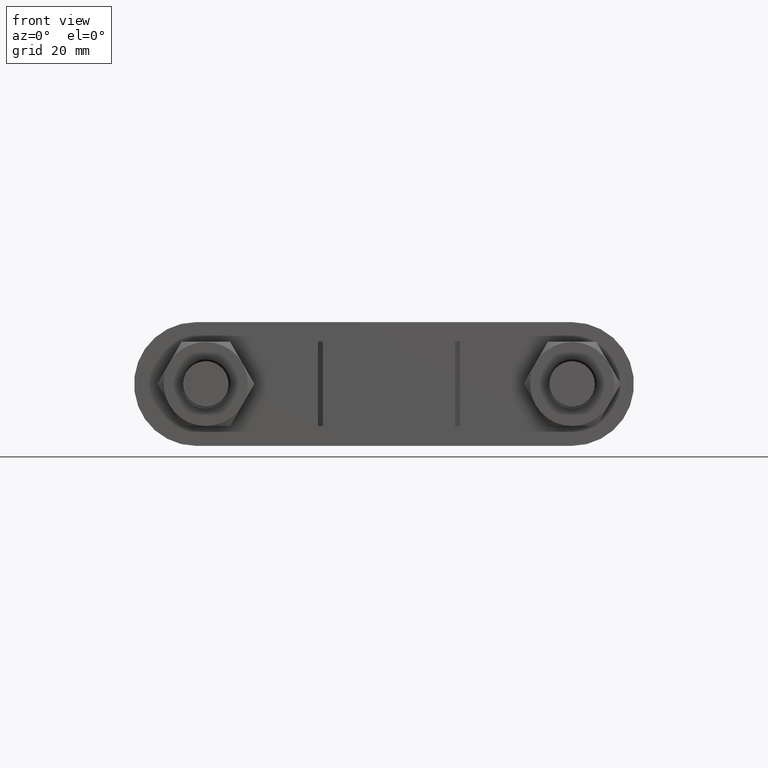
[diagram: clean part render]
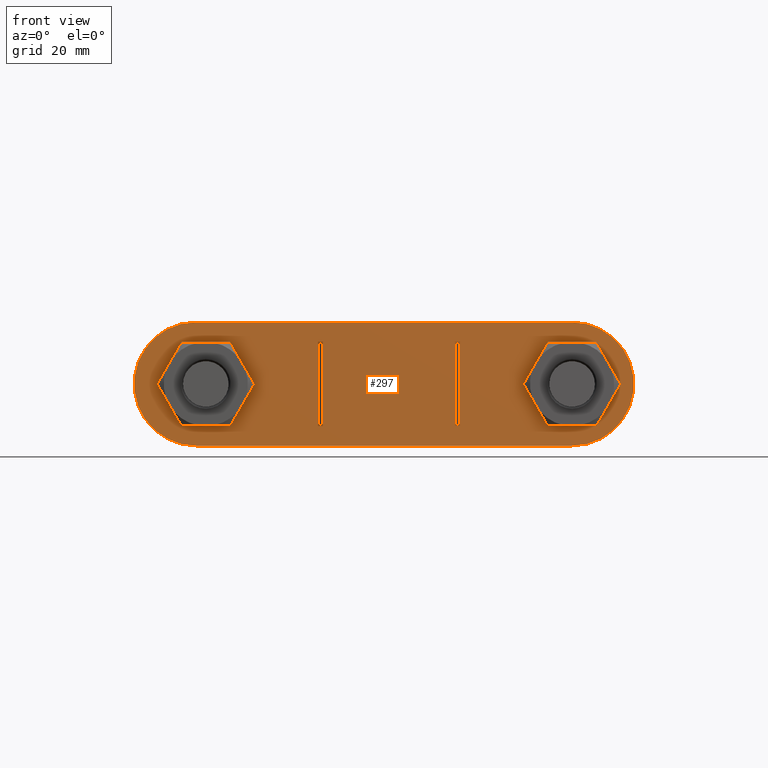
[diagram: same view with one face highlighted and labeled with its STEP entity id]
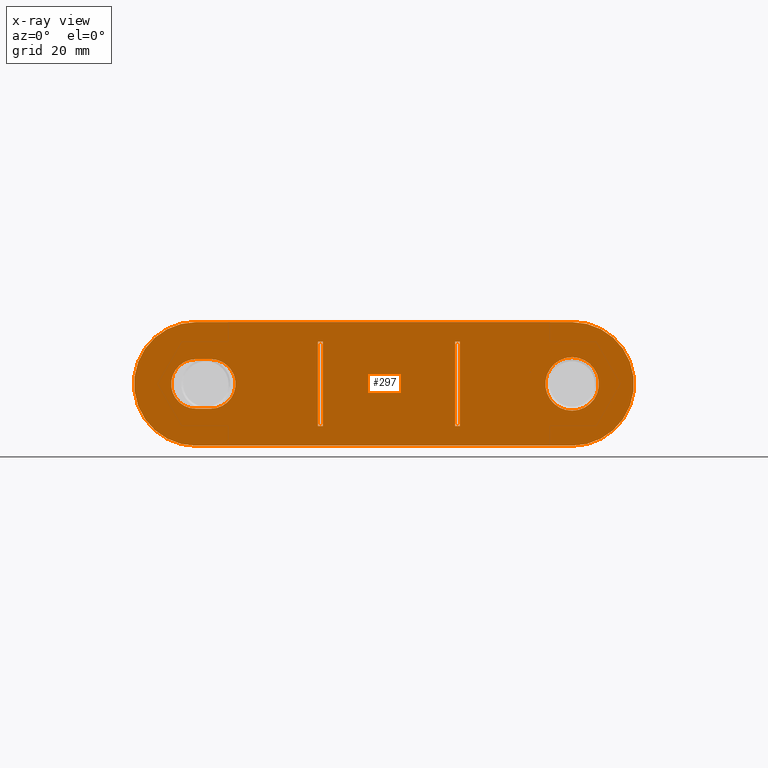
[diagram: x-ray of the same camera — body ghosted, the highlighted face saturated]
A machine part, front view. The second image highlights one B-rep face of the part: STEP entity #297.
The next image is the same camera in x-ray: the body ghosted, the highlighted face saturated — about 0% of this face is hidden behind the body in this view.
In plain terms, the highlighted planar face has unit normal (0, 1, -0).
Its self-contained STEP definition (entity closure, byte-faithful):
#297 = ADVANCED_FACE( '', ( #449, #450, #451, #452, #453 ), #454, .F. );
#449 = FACE_OUTER_BOUND( '', #1527, .T. );
#450 = FACE_BOUND( '', #1528, .T. );
#451 = FACE_BOUND( '', #1529, .T. );
#452 = FACE_BOUND( '', #1530, .T. );
#453 = FACE_BOUND( '', #1531, .T. );
#454 = PLANE( '', #1532 );
#1527 = EDGE_LOOP( '', ( #1902, #1903, #1904, #1905 ) );
#1528 = EDGE_LOOP( '', ( #1906, #1907, #1908, #1909 ) );
#1529 = EDGE_LOOP( '', ( #1910 ) );
#1530 = EDGE_LOOP( '', ( #1911, #1912, #1913, #1914 ) );
#1531 = EDGE_LOOP( '', ( #1915, #1916, #1917, #1918 ) );
#1532 = AXIS2_PLACEMENT_3D( '', #1919, #1920, #1921 );
#1902 = ORIENTED_EDGE( '', *, *, #2565, .F. );
#1903 = ORIENTED_EDGE( '', *, *, #2566, .F. );
#1904 = ORIENTED_EDGE( '', *, *, #2567, .F. );
#1905 = ORIENTED_EDGE( '', *, *, #2568, .F. );
#1906 = ORIENTED_EDGE( '', *, *, #2569, .F. );
#1907 = ORIENTED_EDGE( '', *, *, #2570, .T. );
#1908 = ORIENTED_EDGE( '', *, *, #2571, .T. );
#1909 = ORIENTED_EDGE( '', *, *, #2572, .F. );
#1910 = ORIENTED_EDGE( '', *, *, #2573, .T. );
#1911 = ORIENTED_EDGE( '', *, *, #2574, .F. );
#1912 = ORIENTED_EDGE( '', *, *, #2575, .F. );
#1913 = ORIENTED_EDGE( '', *, *, #2576, .F. );
#1914 = ORIENTED_EDGE( '', *, *, #2577, .F. );
#1915 = ORIENTED_EDGE( '', *, *, #2578, .T. );
#1916 = ORIENTED_EDGE( '', *, *, #2579, .T. );
#1917 = ORIENTED_EDGE( '', *, *, #2580, .F. );
#1918 = ORIENTED_EDGE( '', *, *, #2581, .F. );
#1919 = CARTESIAN_POINT( '', ( -39.0000000000000, 31.3000000000001, 2.78648428436405E-013 ) );
#1920 = DIRECTION( '', ( 5.79542473279380E-048, 1.00000000000000, -1.50836642442293E-016 ) );
#1921 = DIRECTION( '', ( 1.00000000000000, -1.21543267145725E-063, 3.84218624795431E-032 ) );
#2565 = EDGE_CURVE( '', #2829, #2830, #2831, .T. );
#2566 = EDGE_CURVE( '', #2832, #2829, #2833, .T. );
#2567 = EDGE_CURVE( '', #2834, #2832, #2835, .T. );
#2568 = EDGE_CURVE( '', #2830, #2834, #2836, .T. );
#2569 = EDGE_CURVE( '', #2837, #2838, #2839, .T. );
#2570 = EDGE_CURVE( '', #2837, #2840, #2841, .T. );
#2571 = EDGE_CURVE( '', #2840, #2842, #2843, .T. );
#2572 = EDGE_CURVE( '', #2838, #2842, #2844, .T. );
#2573 = EDGE_CURVE( '', #2845, #2845, #2846, .T. );
#2574 = EDGE_CURVE( '', #2847, #2848, #2849, .T. );
#2575 = EDGE_CURVE( '', #2850, #2847, #2851, .T. );
#2576 = EDGE_CURVE( '', #2852, #2850, #2853, .T. );
#2577 = EDGE_CURVE( '', #2848, #2852, #2854, .T. );
#2578 = EDGE_CURVE( '', #2855, #2856, #2857, .T. );
#2579 = EDGE_CURVE( '', #2856, #2858, #2859, .T. );
#2580 = EDGE_CURVE( '', #2860, #2858, #2861, .T. );
#2581 = EDGE_CURVE( '', #2855, #2860, #2862, .T. );
#2829 = VERTEX_POINT( '', #3464 );
#2830 = VERTEX_POINT( '', #3465 );
#2831 = CIRCLE( '', #3466, 12.5000000000000 );
#2832 = VERTEX_POINT( '', #3467 );
#2833 = LINE( '', #3468, #3469 );
#2834 = VERTEX_POINT( '', #3470 );
#2835 = CIRCLE( '', #3471, 12.5000000000000 );
#2836 = LINE( '', #3472, #3473 );
#2837 = VERTEX_POINT( '', #3474 );
#2838 = VERTEX_POINT( '', #3475 );
#2839 = LINE( '', #3476, #3477 );
#2840 = VERTEX_POINT( '', #3478 );
#2841 = LINE( '', #3479, #3480 );
#2842 = VERTEX_POINT( '', #3481 );
#2843 = LINE( '', #3482, #3483 );
#2844 = LINE( '', #3484, #3485 );
#2845 = VERTEX_POINT( '', #3486 );
#2846 = CIRCLE( '', #3487, 5.40000000000000 );
#2847 = VERTEX_POINT( '', #3488 );
#2848 = VERTEX_POINT( '', #3489 );
#2849 = CIRCLE( '', #3490, 5.00000000000000 );
#2850 = VERTEX_POINT( '', #3491 );
#2851 = LINE( '', #3492, #3493 );
#2852 = VERTEX_POINT( '', #3494 );
#2853 = CIRCLE( '', #3495, 5.00000000000000 );
#2854 = LINE( '', #3496, #3497 );
#2855 = VERTEX_POINT( '', #3498 );
#2856 = VERTEX_POINT( '', #3499 );
#2857 = LINE( '', #3500, #3501 );
#2858 = VERTEX_POINT( '', #3502 );
#2859 = LINE( '', #3503, #3504 );
#2860 = VERTEX_POINT( '', #3505 );
#2861 = LINE( '', #3506, #3507 );
#2862 = LINE( '', #3508, #3509 );
#3464 = CARTESIAN_POINT( '', ( -39.0000000000001, 31.3000000000001, -12.4999999999997 ) );
#3465 = CARTESIAN_POINT( '', ( -39.0000000000000, 31.3000000000001, 12.5000000000003 ) );
#3466 = AXIS2_PLACEMENT_3D( '', #4066, #4067, #4068 );
#3467 = CARTESIAN_POINT( '', ( 36.9999999999999, 31.3000000000001, -12.5000000000002 ) );
#3468 = CARTESIAN_POINT( '', ( 36.9999999999999, 31.3000000000001, -12.5000000000002 ) );
#3469 = VECTOR( '', #4069, 1000.00000000000 );
#3470 = CARTESIAN_POINT( '', ( 37.0000000000001, 31.3000000000001, 12.5000000000000 ) );
#3471 = AXIS2_PLACEMENT_3D( '', #4070, #4071, #4072 );
#3472 = CARTESIAN_POINT( '', ( -38.9999999999999, 31.3000000000001, 12.5000000000003 ) );
#3473 = VECTOR( '', #4073, 1000.00000000000 );
#3474 = CARTESIAN_POINT( '', ( -14.3500000000001, 31.3000000000001, -8.49999999999990 ) );
#3475 = CARTESIAN_POINT( '', ( -13.3500000000001, 31.3000000000001, -8.49999999999990 ) );
#3476 = CARTESIAN_POINT( '', ( -14.3500000000001, 31.3000000000001, -8.49999999999990 ) );
#3477 = VECTOR( '', #4074, 1000.00000000000 );
#3478 = CARTESIAN_POINT( '', ( -14.3500000000000, 31.3000000000001, 8.50000000000011 ) );
#3479 = CARTESIAN_POINT( '', ( -14.3500000000000, 31.3000000000001, 1.03284535553662E-013 ) );
#3480 = VECTOR( '', #4075, 1000.00000000000 );
#3481 = CARTESIAN_POINT( '', ( -13.3500000000000, 31.3000000000001, 8.50000000000011 ) );
#3482 = CARTESIAN_POINT( '', ( -39.0000000000000, 31.3000000000001, 8.50000000000011 ) );
#3483 = VECTOR( '', #4076, 1000.00000000000 );
#3484 = CARTESIAN_POINT( '', ( -13.3500000000001, 31.3000000000001, -8.49999999999990 ) );
#3485 = VECTOR( '', #4077, 1000.00000000000 );
#3486 = CARTESIAN_POINT( '', ( 37.0000000000000, 31.3000000000001, 5.39999999999975 ) );
#3487 = AXIS2_PLACEMENT_3D( '', #4078, #4079, #4080 );
#3488 = CARTESIAN_POINT( '', ( -39.0000000000000, 31.3000000000001, 5.00000000000027 ) );
#3489 = CARTESIAN_POINT( '', ( -39.0000000000001, 31.3000000000001, -4.99999999999972 ) );
#3490 = AXIS2_PLACEMENT_3D( '', #4081, #4082, #4083 );
#3491 = CARTESIAN_POINT( '', ( -36.0000000000000, 31.3000000000001, 5.00000000000026 ) );
#3492 = CARTESIAN_POINT( '', ( -36.0000000000000, 31.3000000000001, 5.00000000000026 ) );
#3493 = VECTOR( '', #4084, 1000.00000000000 );
#3494 = CARTESIAN_POINT( '', ( -36.0000000000001, 31.3000000000001, -4.99999999999974 ) );
#3495 = AXIS2_PLACEMENT_3D( '', #4085, #4086, #4087 );
#3496 = CARTESIAN_POINT( '', ( -39.0000000000001, 31.3000000000001, -4.99999999999972 ) );
#3497 = VECTOR( '', #4088, 1000.00000000000 );
#3498 = CARTESIAN_POINT( '', ( 14.3499999999999, 31.3000000000001, -8.50000000000010 ) );
#3499 = CARTESIAN_POINT( '', ( 13.3499999999999, 31.3000000000001, -8.50000000000010 ) );
#3500 = CARTESIAN_POINT( '', ( -39.0000000000000, 31.3000000000001, -8.50000000000010 ) );
#3501 = VECTOR( '', #4089, 1000.00000000000 );
#3502 = CARTESIAN_POINT( '', ( 13.3500000000000, 31.3000000000001, 8.49999999999991 ) );
#3503 = CARTESIAN_POINT( '', ( 13.3500000000000, 31.3000000000001, -8.12398257694737E-014 ) );
#3504 = VECTOR( '', #4090, 1000.00000000000 );
#3505 = CARTESIAN_POINT( '', ( 14.3500000000000, 31.3000000000001, 8.49999999999991 ) );
#3506 = CARTESIAN_POINT( '', ( 14.3500000000000, 31.3000000000001, 8.49999999999991 ) );
#3507 = VECTOR( '', #4091, 1000.00000000000 );
#3508 = CARTESIAN_POINT( '', ( 14.3499999999999, 31.3000000000001, -8.50000000000010 ) );
#3509 = VECTOR( '', #4092, 1000.00000000000 );
#4066 = CARTESIAN_POINT( '', ( -39.0000000000000, 31.3000000000001, 2.78648428436405E-013 ) );
#4067 = DIRECTION( '', ( -3.84218624795431E-032, 1.00000000000000, -1.50836642442293E-016 ) );
#4068 = DIRECTION( '', ( 9.47172037996550E-064, 1.50836642442293E-016, 1.00000000000000 ) );
#4069 = DIRECTION( '', ( -1.00000000000000, 1.01659071191936E-030, 6.99440505514123E-015 ) );
#4070 = CARTESIAN_POINT( '', ( 37.0000000000000, 31.3000000000001, -2.45987461850420E-013 ) );
#4071 = DIRECTION( '', ( -3.84218624795431E-032, 1.00000000000000, -1.50836642442293E-016 ) );
#4072 = DIRECTION( '', ( 9.47172037996550E-064, 1.50836642442293E-016, 1.00000000000000 ) );
#4073 = DIRECTION( '', ( 1.00000000000000, 3.84218624795429E-032, -1.05501257439923E-030 ) );
#4074 = DIRECTION( '', ( 1.00000000000000, 3.84218624795427E-032, -2.60857962300927E-030 ) );
#4075 = DIRECTION( '', ( 7.11415386948247E-015, 1.50836642442293E-016, 1.00000000000000 ) );
#4076 = DIRECTION( '', ( 1.00000000000000, 3.84218624795427E-032, -2.60857962300927E-030 ) );
#4077 = DIRECTION( '', ( 7.11415386948247E-015, 1.50836642442293E-016, 1.00000000000000 ) );
#4078 = CARTESIAN_POINT( '', ( 37.0000000000000, 31.3000000000001, -2.49456908802374E-013 ) );
#4079 = DIRECTION( '', ( -3.84218624795430E-032, 1.00000000000000, -1.50836642442293E-016 ) );
#4080 = DIRECTION( '', ( 0.000000000000000, 1.50836642442293E-016, 1.00000000000000 ) );
#4081 = CARTESIAN_POINT( '', ( -39.0000000000000, 31.3000000000001, 2.80383151912382E-013 ) );
#4082 = DIRECTION( '', ( 3.84218624795431E-032, -1.00000000000000, 1.50836642442293E-016 ) );
#4083 = DIRECTION( '', ( 9.47172037996550E-064, 1.50836642442293E-016, 1.00000000000000 ) );
#4084 = DIRECTION( '', ( -1.00000000000000, -3.84218624795429E-032, 1.05501257439923E-030 ) );
#4085 = CARTESIAN_POINT( '', ( -36.0000000000000, 31.3000000000001, 2.59399936746959E-013 ) );
#4086 = DIRECTION( '', ( 3.84218624795431E-032, -1.00000000000000, 1.50836642442293E-016 ) );
#4087 = DIRECTION( '', ( 9.47172037996550E-064, 1.50836642442293E-016, 1.00000000000000 ) );
#4088 = DIRECTION( '', ( 1.00000000000000, -1.01659071191936E-030, -6.99440505514122E-015 ) );
#4089 = DIRECTION( '', ( -1.00000000000000, -3.84218624795427E-032, 2.60857962300927E-030 ) );
#4090 = DIRECTION( '', ( 6.87465624079998E-015, 1.50836642442293E-016, 1.00000000000000 ) );
#4091 = DIRECTION( '', ( -1.00000000000000, -3.84218624795427E-032, 2.60857962300927E-030 ) );
#4092 = DIRECTION( '', ( 6.87465624079998E-015, 1.50836642442293E-016, 1.00000000000000 ) );